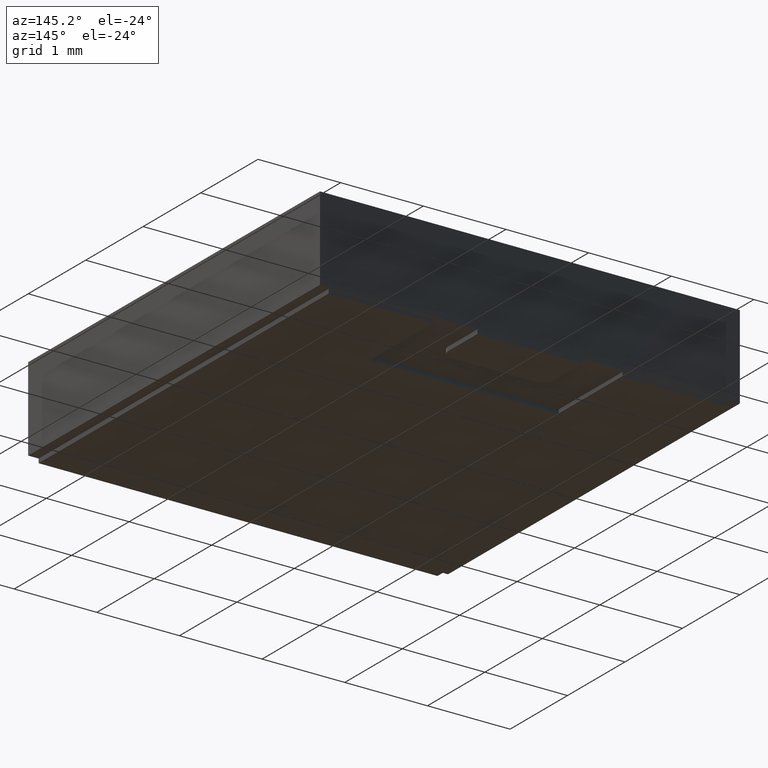
[diagram: clean part render]
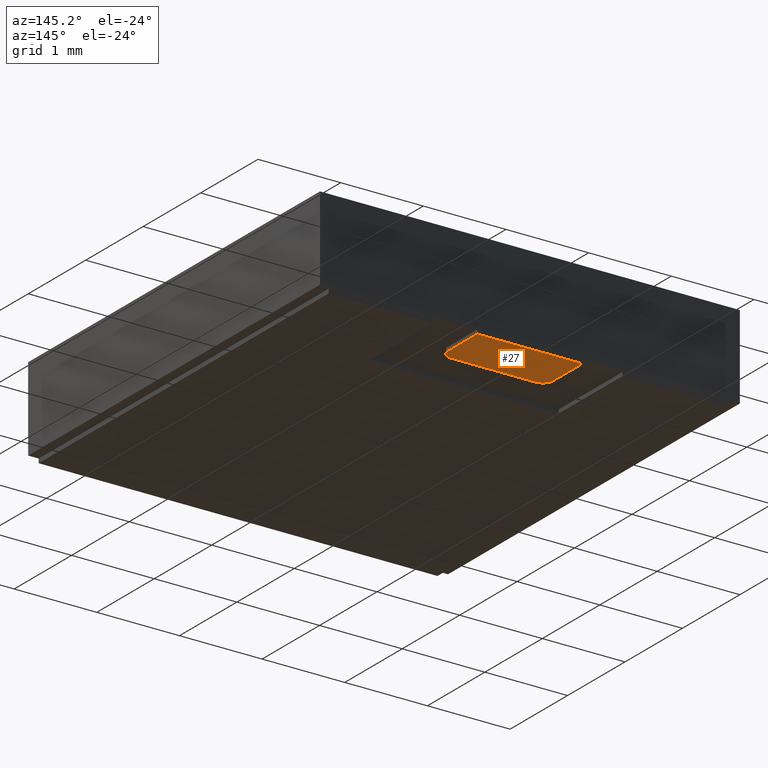
[diagram: same view with one face highlighted and labeled with its STEP entity id]
A machine part, auxiliary view. The second image highlights one B-rep face of the part: STEP entity #27.
In plain terms, the highlighted planar face has unit normal (0, 0, 1).
Its self-contained STEP definition (entity closure, byte-faithful):
#4 = CARTESIAN_POINT ( 'NONE',  ( 0.02500000000001989867, 0.1000000061611885371, 0.000000000000000000 ) ) ;
#6 = DIRECTION ( 'NONE',  ( 0.000000000000000000, 0.000000000000000000, 1.000000000000000000 ) ) ;
#27 = ADVANCED_FACE ( 'NONE', ( #482 ), #368, .F. ) ;
#28 = ORIENTED_EDGE ( 'NONE', *, *, #735, .F. ) ;
#29 = CARTESIAN_POINT ( 'NONE',  ( 0.02500000000001989867, 0.1000000061611885371, 0.000000000000000000 ) ) ;
#51 = VERTEX_POINT ( 'NONE', #786 ) ;
#72 = ORIENTED_EDGE ( 'NONE', *, *, #198, .F. ) ;
#74 = EDGE_LOOP ( 'NONE', ( #489, #413, #492, #72, #28, #632 ) ) ;
#80 = LINE ( 'NONE', #701, #563 ) ;
#84 = DIRECTION ( 'NONE',  ( 0.9999999999999524825, 3.080605995648821658E-07, 0.000000000000000000 ) ) ;
#107 = DIRECTION ( 'NONE',  ( 1.000000000000000000, 0.000000000000000000, 0.000000000000000000 ) ) ;
#109 = EDGE_CURVE ( 'NONE', #675, #137, #80, .T. ) ;
#137 = VERTEX_POINT ( 'NONE', #270 ) ;
#164 = VERTEX_POINT ( 'NONE', #320 ) ;
#165 = EDGE_CURVE ( 'NONE', #375, #51, #559, .T. ) ;
#194 = DIRECTION ( 'NONE',  ( 1.000000000000000000, 0.000000000000000000, -0.000000000000000000 ) ) ;
#196 = CARTESIAN_POINT ( 'NONE',  ( -0.02499999999999147349, 0.09999999383881073844, 0.000000000000000000 ) ) ;
#198 = EDGE_CURVE ( 'NONE', #164, #493, #388, .T. ) ;
#217 = DIRECTION ( 'NONE',  ( 0.000000000000000000, 0.000000000000000000, 1.000000000000000000 ) ) ;
#248 = EDGE_CURVE ( 'NONE', #51, #675, #473, .T. ) ;
#270 = CARTESIAN_POINT ( 'NONE',  ( 0.02000000000002444267, 0.07500000002087149620, 0.000000000000000000 ) ) ;
#295 = CARTESIAN_POINT ( 'NONE',  ( -0.01999999999998536629, 0.07999998769845362290, 0.000000000000000000 ) ) ;
#320 = CARTESIAN_POINT ( 'NONE',  ( 0.02500000000001990214, 0.08000000002085344564, 0.000000000000000000 ) ) ;
#328 = CARTESIAN_POINT ( 'NONE',  ( 0.02500000000001990214, 0.08000000002085344564, 0.000000000000000000 ) ) ;
#344 = DIRECTION ( 'NONE',  ( 1.000000000000000000, 0.000000000000000000, 0.000000000000000000 ) ) ;
#368 = PLANE ( 'NONE',  #371 ) ;
#371 = AXIS2_PLACEMENT_3D ( 'NONE', #604, #6, #194 ) ;
#375 = VERTEX_POINT ( 'NONE', #196 ) ;
#388 = LINE ( 'NONE', #328, #648 ) ;
#403 = CIRCLE ( 'NONE', #500, 0.004999999999981950306 ) ;
#413 = ORIENTED_EDGE ( 'NONE', *, *, #165, .F. ) ;
#416 = DIRECTION ( 'NONE',  ( 0.000000000000000000, 0.000000000000000000, 1.000000000000000000 ) ) ;
#420 = CARTESIAN_POINT ( 'NONE',  ( -0.01999999999999602096, 0.07499998769844751223, 0.000000000000000000 ) ) ;
#433 = VECTOR ( 'NONE', #460, 39.37007874015748854 ) ;
#458 = DIRECTION ( 'NONE',  ( -2.134255589796766652E-16, -1.000000000000000000, 0.000000000000000000 ) ) ;
#460 = DIRECTION ( 'NONE',  ( -0.9999999999999696909, -2.464475559458771507E-07, 0.000000000000000000 ) ) ;
#473 = CIRCLE ( 'NONE', #643, 0.005000000000006110668 ) ;
#482 = FACE_OUTER_BOUND ( 'NONE', #74, .T. ) ;
#489 = ORIENTED_EDGE ( 'NONE', *, *, #248, .F. ) ;
#492 = ORIENTED_EDGE ( 'NONE', *, *, #593, .F. ) ;
#493 = VERTEX_POINT ( 'NONE', #4 ) ;
#500 = AXIS2_PLACEMENT_3D ( 'NONE', #651, #416, #107 ) ;
#559 = LINE ( 'NONE', #695, #729 ) ;
#563 = VECTOR ( 'NONE', #84, 39.37007874015748854 ) ;
#569 = DIRECTION ( 'NONE',  ( -2.134255589797980265E-16, 1.000000000000000000, 0.000000000000000000 ) ) ;
#593 = EDGE_CURVE ( 'NONE', #493, #375, #637, .T. ) ;
#604 = CARTESIAN_POINT ( 'NONE',  ( -0.01999999999998536629, 0.07999998769845362290, 0.000000000000000000 ) ) ;
#632 = ORIENTED_EDGE ( 'NONE', *, *, #109, .F. ) ;
#637 = LINE ( 'NONE', #29, #433 ) ;
#643 = AXIS2_PLACEMENT_3D ( 'NONE', #295, #217, #344 ) ;
#648 = VECTOR ( 'NONE', #569, 39.37007874015748143 ) ;
#651 = CARTESIAN_POINT ( 'NONE',  ( 0.02000000000003794576, 0.08000000002085344564, 0.000000000000000000 ) ) ;
#675 = VERTEX_POINT ( 'NONE', #420 ) ;
#695 = CARTESIAN_POINT ( 'NONE',  ( -0.02499999999999147349, 0.09999999383881073844, 0.000000000000000000 ) ) ;
#701 = CARTESIAN_POINT ( 'NONE',  ( -0.01999999999999602096, 0.07499998769844751223, 0.000000000000000000 ) ) ;
#729 = VECTOR ( 'NONE', #458, 39.37007874015748143 ) ;
#735 = EDGE_CURVE ( 'NONE', #137, #164, #403, .T. ) ;
#786 = CARTESIAN_POINT ( 'NONE',  ( -0.02499999999999147696, 0.07999998769846426716, 0.000000000000000000 ) ) ;